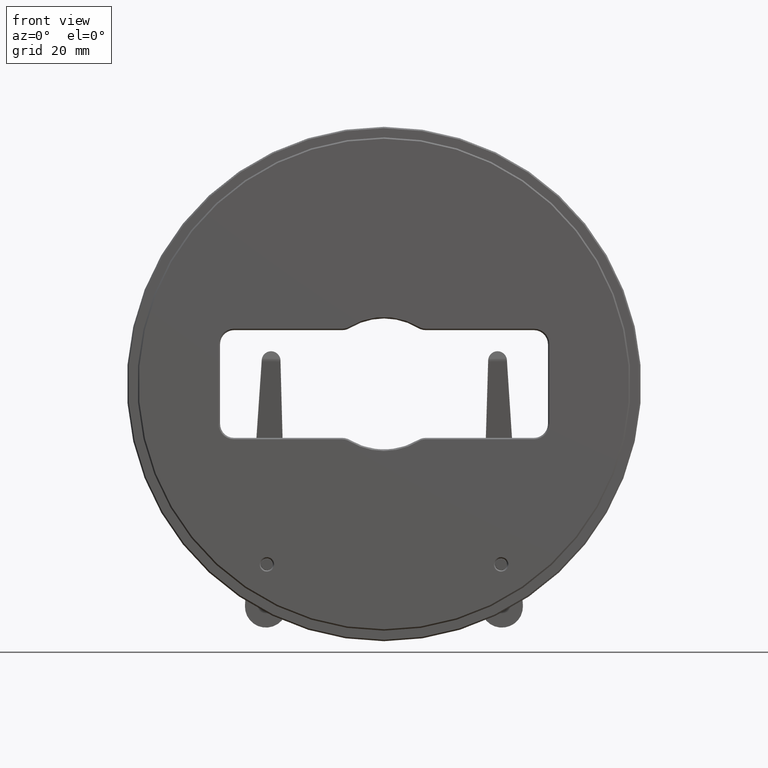
[diagram: clean part render]
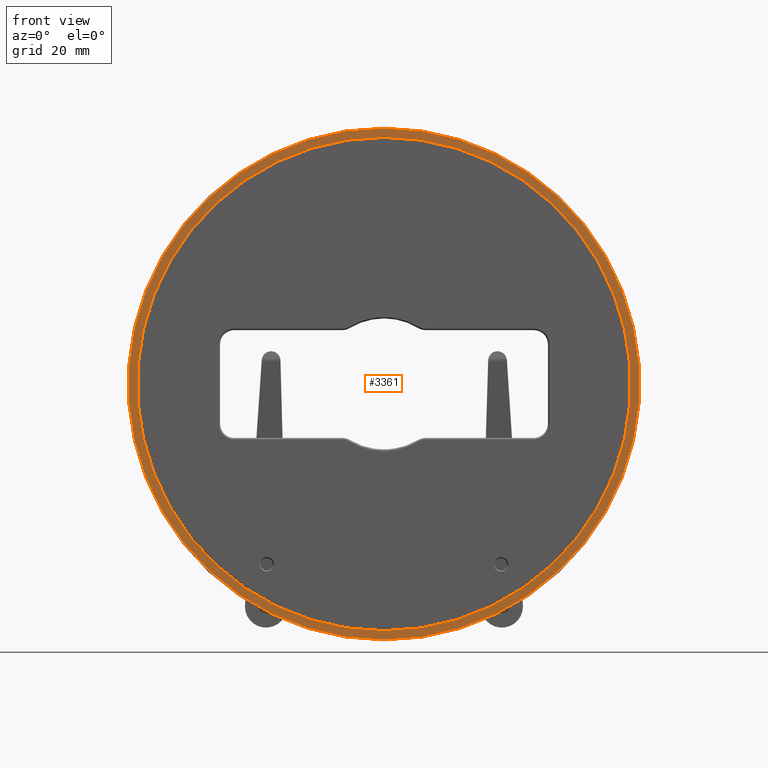
[diagram: same view with one face highlighted and labeled with its STEP entity id]
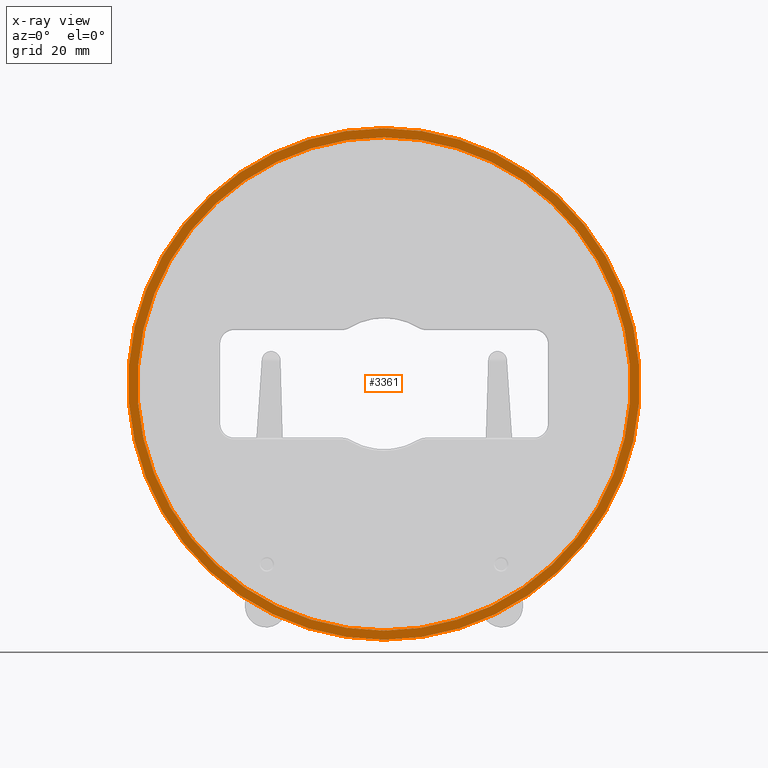
[diagram: x-ray of the same camera — body ghosted, the highlighted face saturated]
A machine part, front view. The second image highlights one B-rep face of the part: STEP entity #3361.
The next image is the same camera in x-ray: the body ghosted, the highlighted face saturated — about 0% of this face is hidden behind the body in this view.
In plain terms, the highlighted planar face has unit normal (0, -1, 0).
Its self-contained STEP definition (entity closure, byte-faithful):
#141 = DIRECTION ( 'NONE',  ( 0.000000000000000000, 0.000000000000000000, -1.000000000000000000 ) ) ;
#165 = DIRECTION ( 'NONE',  ( 0.000000000000000000, -1.000000000000000000, 0.000000000000000000 ) ) ;
#178 = DIRECTION ( 'NONE',  ( 0.000000000000000000, -1.000000000000000000, 0.000000000000000000 ) ) ;
#708 = CIRCLE ( 'NONE', #2953, 52.65000000000000568 ) ;
#906 = FACE_OUTER_BOUND ( 'NONE', #6938, .T. ) ;
#1044 = ORIENTED_EDGE ( 'NONE', *, *, #7624, .F. ) ;
#1537 = AXIS2_PLACEMENT_3D ( 'NONE', #6614, #178, #2575 ) ;
#1747 = CIRCLE ( 'NONE', #5023, 54.60000000000000142 ) ;
#1943 = CIRCLE ( 'NONE', #2919, 54.60000000000000142 ) ;
#1972 = ORIENTED_EDGE ( 'NONE', *, *, #4442, .T. ) ;
#2118 = CARTESIAN_POINT ( 'NONE',  ( 0.000000000000000000, 0.000000000000000000, 54.60000000000000142 ) ) ;
#2165 = DIRECTION ( 'NONE',  ( 0.000000000000000000, -1.000000000000000000, 0.000000000000000000 ) ) ;
#2201 = DIRECTION ( 'NONE',  ( 0.000000000000000000, -0.000000000000000000, -1.000000000000000000 ) ) ;
#2569 = VERTEX_POINT ( 'NONE', #2118 ) ;
#2575 = DIRECTION ( 'NONE',  ( 0.000000000000000000, 0.000000000000000000, -1.000000000000000000 ) ) ;
#2596 = DIRECTION ( 'NONE',  ( 0.000000000000000000, -1.000000000000000000, 0.000000000000000000 ) ) ;
#2919 = AXIS2_PLACEMENT_3D ( 'NONE', #4988, #6696, #141 ) ;
#2953 = AXIS2_PLACEMENT_3D ( 'NONE', #6716, #2596, #3696 ) ;
#3160 = EDGE_CURVE ( 'NONE', #5884, #3703, #708, .T. ) ;
#3337 = AXIS2_PLACEMENT_3D ( 'NONE', #7590, #2165, #2201 ) ;
#3361 = ADVANCED_FACE ( 'NONE', ( #906, #3899 ), #5168, .T. ) ;
#3517 = ORIENTED_EDGE ( 'NONE', *, *, #4039, .T. ) ;
#3696 = DIRECTION ( 'NONE',  ( 0.000000000000000000, 0.000000000000000000, -1.000000000000000000 ) ) ;
#3703 = VERTEX_POINT ( 'NONE', #4526 ) ;
#3899 = FACE_BOUND ( 'NONE', #5760, .T. ) ;
#4039 = EDGE_CURVE ( 'NONE', #7097, #2569, #1943, .T. ) ;
#4347 = CARTESIAN_POINT ( 'NONE',  ( 0.000000000000000000, 0.000000000000000000, 0.000000000000000000 ) ) ;
#4442 = EDGE_CURVE ( 'NONE', #2569, #7097, #1747, .T. ) ;
#4526 = CARTESIAN_POINT ( 'NONE',  ( 6.447765397510815174E-15, 0.000000000000000000, 52.65000000000000568 ) ) ;
#4988 = CARTESIAN_POINT ( 'NONE',  ( 0.000000000000000000, 0.000000000000000000, 0.000000000000000000 ) ) ;
#5023 = AXIS2_PLACEMENT_3D ( 'NONE', #4347, #165, #7405 ) ;
#5168 = PLANE ( 'NONE',  #3337 ) ;
#5463 = ORIENTED_EDGE ( 'NONE', *, *, #3160, .F. ) ;
#5760 = EDGE_LOOP ( 'NONE', ( #5463, #1044 ) ) ;
#5884 = VERTEX_POINT ( 'NONE', #7454 ) ;
#6614 = CARTESIAN_POINT ( 'NONE',  ( 0.000000000000000000, 0.000000000000000000, 0.000000000000000000 ) ) ;
#6696 = DIRECTION ( 'NONE',  ( 0.000000000000000000, -1.000000000000000000, 0.000000000000000000 ) ) ;
#6716 = CARTESIAN_POINT ( 'NONE',  ( 0.000000000000000000, 0.000000000000000000, 0.000000000000000000 ) ) ;
#6852 = CIRCLE ( 'NONE', #1537, 52.65000000000000568 ) ;
#6938 = EDGE_LOOP ( 'NONE', ( #1972, #3517 ) ) ;
#7097 = VERTEX_POINT ( 'NONE', #7417 ) ;
#7405 = DIRECTION ( 'NONE',  ( 0.000000000000000000, 0.000000000000000000, -1.000000000000000000 ) ) ;
#7417 = CARTESIAN_POINT ( 'NONE',  ( 6.704941225331757250E-15, 0.000000000000000000, -54.60000000000000142 ) ) ;
#7454 = CARTESIAN_POINT ( 'NONE',  ( 0.000000000000000000, 0.000000000000000000, -52.65000000000000568 ) ) ;
#7590 = CARTESIAN_POINT ( 'NONE',  ( 0.000000000000000000, 0.000000000000000000, 0.000000000000000000 ) ) ;
#7624 = EDGE_CURVE ( 'NONE', #3703, #5884, #6852, .T. ) ;